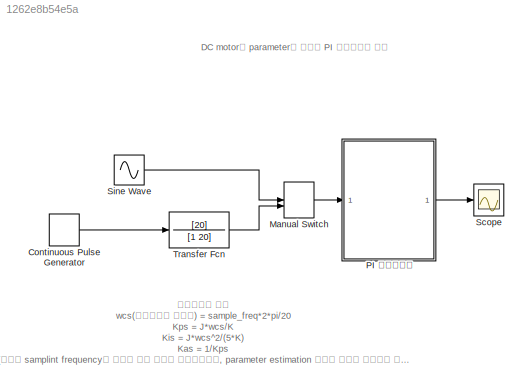
MODEL slx_1262e8b54e5a
KIND model
CONFIG AbsTol = auto
CONFIG EnableMultiTasking = off
CONFIG FixedStep = ts_control
CONFIG MaxStep = auto
CONFIG MinStep = auto
CONFIG RelTol = 1e-3
CONFIG SampleTimeConstraint = Unconstrained
CONFIG SolverName = ode4
CONFIG StartTime = 0.0
CONFIG StopTime = 10
BLOCK [DiscretePulseGenerator] Continuous Pulse Generator
  Amplitude = 100
  Period = 10
  Ports = [0, 1]
  PulseType = Time based
  PulseWidth = 50
BLOCK [ManualSwitch] Manual Switch
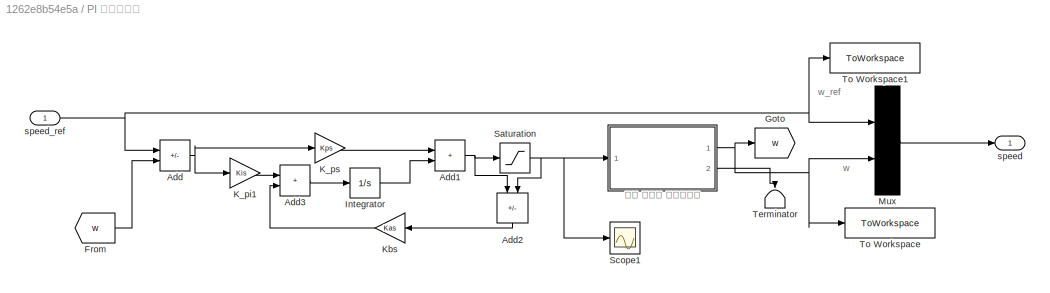
BLOCK [SubSystem] PI 속도제어기
  Ports = [1, 1]
  RequestExecContextInheritance = off
BLOCK [Sum] PI 속도제어기/Add
  IconShape = rectangular
  Inputs = +-
  Ports = [2, 1]
BLOCK [Sum] PI 속도제어기/Add1
  IconShape = rectangular
  Ports = [2, 1]
BLOCK [Sum] PI 속도제어기/Add2
  IconShape = rectangular
  Inputs = -+
  NameLocation = left
  Ports = [2, 1]
BLOCK [Sum] PI 속도제어기/Add3
  IconShape = rectangular
  Ports = [2, 1]
BLOCK [From] PI 속도제어기/From
  GotoTag = w
BLOCK [Goto] PI 속도제어기/Goto
  GotoTag = w
BLOCK [Integrator] PI 속도제어기/Integrator
  Ports = [1, 1]
BLOCK [Gain] PI 속도제어기/K_pi1
  Gain = Kis
BLOCK [Gain] PI 속도제어기/K_ps
  Gain = Kps
BLOCK [Gain] PI 속도제어기/Kbs
  Gain = Kas
  NameLocation = top
BLOCK [Mux] PI 속도제어기/Mux
  DisplayOption = bar
  Inputs = 2
  Ports = [2, 1]
BLOCK [Saturate] PI 속도제어기/Saturation
  LowerLimit = -12
  UpperLimit = 12
BLOCK [Scope] PI 속도제어기/Scope1
  Floating = off
  NumInputPorts = 1
  Ports = [1]
  ScopeSpecificationString = Simulink.scopes.TimeScopeBlockCfg('CurrentConfiguration', extmgr.ConfigurationSet(extmgr.Configuration('Core','General UI',true),extmgr.Configuration('Core','Source UI',true),extmgr.Configuration('Sources','WiredSimulink',true,'DataLoggingVariableName','ScopeData1'),extmgr.Configuration('Visuals','Time Domain',true,'SerializedDisplays',{struct('MinYLimReal','-1.5','MaxYLimReal','13.5','YLabelReal'...<+1382ch>
BLOCK [Terminator] PI 속도제어기/Terminator
  NameLocation = left
BLOCK [ToWorkspace] PI 속도제어기/To Workspace
  FixptAsFi = on
  MaxDataPoints = inf
  Ports = [1]
  SampleTime = -1
  VariableName = w_real
BLOCK [ToWorkspace] PI 속도제어기/To Workspace1
  FixptAsFi = on
  MaxDataPoints = inf
  Ports = [1]
  SampleTime = -1
  VariableName = w_ref
BLOCK [Outport] PI 속도제어기/speed
BLOCK [Inport] PI 속도제어기/speed_ref
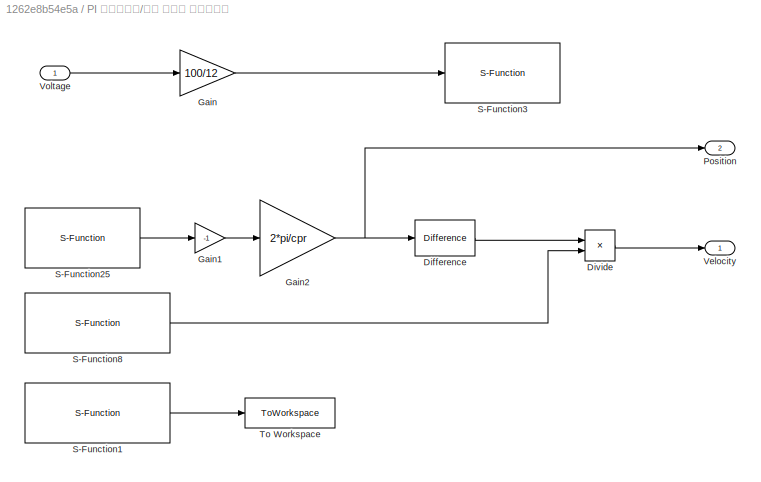
BLOCK [SubSystem] PI 속도제어기/모터 구동부 서브시스템
  Ports = [1, 2]
  RequestExecContextInheritance = off
BLOCK [Reference] PI 속도제어기/모터 구동부 서브시스템/Difference  REF=simulink/Discrete/Difference
  Ports = [1, 1]
  SourceBlock = simulink/Discrete/Difference
  SourceProductBaseCode = SL
  SourceType = Difference
BLOCK [Product] PI 속도제어기/모터 구동부 서브시스템/Divide
  Inputs = */
  Ports = [2, 1]
BLOCK [Gain] PI 속도제어기/모터 구동부 서브시스템/Gain
  Gain = 100/12
BLOCK [Gain] PI 속도제어기/모터 구동부 서브시스템/Gain1
  Gain = -1
BLOCK [Gain] PI 속도제어기/모터 구동부 서브시스템/Gain2
  Gain = 2*pi/cpr
BLOCK [Outport] PI 속도제어기/모터 구동부 서브시스템/Position
  Port = 2
BLOCK [S-Function] PI 속도제어기/모터 구동부 서브시스템/S-Function1
  EnableBusSupport = off
  FunctionName = DueDaqSfun
  Parameters = TimeInfo,BlockInfo,ParamInfo,PortInfo
  Ports = [0, 1]
  SFcnIsStateOwnerBlock = off
  SFunctionDeploymentMode = off
BLOCK [S-Function] PI 속도제어기/모터 구동부 서브시스템/S-Function25
  EnableBusSupport = off
  FunctionName = DueDaqSfun
  Parameters = TimeInfo,BlockInfo,ParamInfo,PortInfo
  Ports = [0, 1]
  SFcnIsStateOwnerBlock = off
  SFunctionDeploymentMode = off
BLOCK [S-Function] PI 속도제어기/모터 구동부 서브시스템/S-Function3
  EnableBusSupport = off
  FunctionName = DueDaqSfun
  Parameters = TimeInfo,BlockInfo,ParamInfo,PortInfo
  Ports = [1]
  SFcnIsStateOwnerBlock = off
  SFunctionDeploymentMode = off
BLOCK [S-Function] PI 속도제어기/모터 구동부 서브시스템/S-Function8
  EnableBusSupport = off
  FunctionName = DueDaqSfun
  Parameters = TimeInfo,BlockInfo,ParamInfo,PortInfo
  Ports = [0, 1]
  SFcnIsStateOwnerBlock = off
  SFunctionDeploymentMode = off
BLOCK [ToWorkspace] PI 속도제어기/모터 구동부 서브시스템/To Workspace
  FixptAsFi = on
  MaxDataPoints = inf
  Ports = [1]
  SampleTime = -1
  VariableName = time
BLOCK [Outport] PI 속도제어기/모터 구동부 서브시스템/Velocity
BLOCK [Inport] PI 속도제어기/모터 구동부 서브시스템/Voltage
BLOCK [Scope] Scope
  Floating = off
  NumInputPorts = 1
  Ports = [1]
  ScopeSpecificationString = Simulink.scopes.TimeScopeBlockCfg('CurrentConfiguration', extmgr.ConfigurationSet(extmgr.Configuration('Core','General UI',true),extmgr.Configuration('Core','Source UI',true),extmgr.Configuration('Sources','WiredSimulink',true),extmgr.Configuration('Visuals','Time Domain',true,'SerializedDisplays',{struct('MinYLimReal','-18.81832','MaxYLimReal','169.36491','YLabelReal','','MinYLimMag','0.00000','M...<+1378ch>
BLOCK [Sin] Sine Wave
  Amplitude = 200
  Frequency = 5
  Ports = [0, 1]
  SampleTime = 0
BLOCK [TransferFcn] Transfer Fcn
  Denominator = [1 20]
  Numerator = [20]
ANNOTATION (root): DC motor의 parameter를 이용한 PI 속도제어기 설계
ANNOTATION (root): 계수구하는 방법 wcs(속도제어기 대역폭) = sample_freq*2*pi/20 Kps = J*wcs/K Kis = J*wcs^2/(5*K) Kas = 1/Kps (여기서 samplint frequency는 제어할 때의 샘플링 주파수보다는, parameter estimation 당시의 샘플링 주파수를 사용하는 것이 바람직함)
ANNOTATION PI 속도제어기: w
ANNOTATION PI 속도제어기: w_ref
LINE Continuous Pulse Generator:1 -> Transfer Fcn:1
LINE Manual Switch:1 -> PI 속도제어기:1
NET PI 속도제어기/Add1:1 -> PI 속도제어기/Add2:1, PI 속도제어기/Saturation:1
LINE PI 속도제어기/Add2:1 -> PI 속도제어기/Kbs:1
LINE PI 속도제어기/Add3:1 -> PI 속도제어기/Integrator:1
NET PI 속도제어기/Add:1 -> PI 속도제어기/K_pi1:1, PI 속도제어기/K_ps:1
LINE PI 속도제어기/From:1 -> PI 속도제어기/Add:2
LINE PI 속도제어기/Integrator:1 -> PI 속도제어기/Add1:2
LINE PI 속도제어기/K_pi1:1 -> PI 속도제어기/Add3:1
LINE PI 속도제어기/K_ps:1 -> PI 속도제어기/Add1:1
LINE PI 속도제어기/Kbs:1 -> PI 속도제어기/Add3:2
LINE PI 속도제어기/Mux:1 -> PI 속도제어기/speed:1
NET PI 속도제어기/Saturation:1 -> PI 속도제어기/Add2:2, PI 속도제어기/Scope1:1, PI 속도제어기/모터 구동부 서브시스템:1
NET PI 속도제어기/speed_ref:1 -> PI 속도제어기/Add:1, PI 속도제어기/Mux:1, PI 속도제어기/To Workspace1:1
LINE PI 속도제어기/모터 구동부 서브시스템/Difference:1 -> PI 속도제어기/모터 구동부 서브시스템/Divide:1
LINE PI 속도제어기/모터 구동부 서브시스템/Divide:1 -> PI 속도제어기/모터 구동부 서브시스템/Velocity:1
LINE PI 속도제어기/모터 구동부 서브시스템/Gain1:1 -> PI 속도제어기/모터 구동부 서브시스템/Gain2:1
NET PI 속도제어기/모터 구동부 서브시스템/Gain2:1 -> PI 속도제어기/모터 구동부 서브시스템/Difference:1, PI 속도제어기/모터 구동부 서브시스템/Position:1
LINE PI 속도제어기/모터 구동부 서브시스템/Gain:1 -> PI 속도제어기/모터 구동부 서브시스템/S-Function3:1
LINE PI 속도제어기/모터 구동부 서브시스템/S-Function1:1 -> PI 속도제어기/모터 구동부 서브시스템/To Workspace:1
LINE PI 속도제어기/모터 구동부 서브시스템/S-Function25:1 -> PI 속도제어기/모터 구동부 서브시스템/Gain1:1
LINE PI 속도제어기/모터 구동부 서브시스템/S-Function8:1 -> PI 속도제어기/모터 구동부 서브시스템/Divide:2
LINE PI 속도제어기/모터 구동부 서브시스템/Voltage:1 -> PI 속도제어기/모터 구동부 서브시스템/Gain:1
NET PI 속도제어기/모터 구동부 서브시스템:1 -> PI 속도제어기/Goto:1, PI 속도제어기/Mux:2, PI 속도제어기/To Workspace:1
LINE PI 속도제어기/모터 구동부 서브시스템:2 -> PI 속도제어기/Terminator:1
LINE PI 속도제어기:1 -> Scope:1
LINE Sine Wave:1 -> Manual Switch:1
LINE Transfer Fcn:1 -> Manual Switch:2
note: NET lines group one-source signal fan-out (src -> all destinations, sorted); 1:1 wires keep LINE
